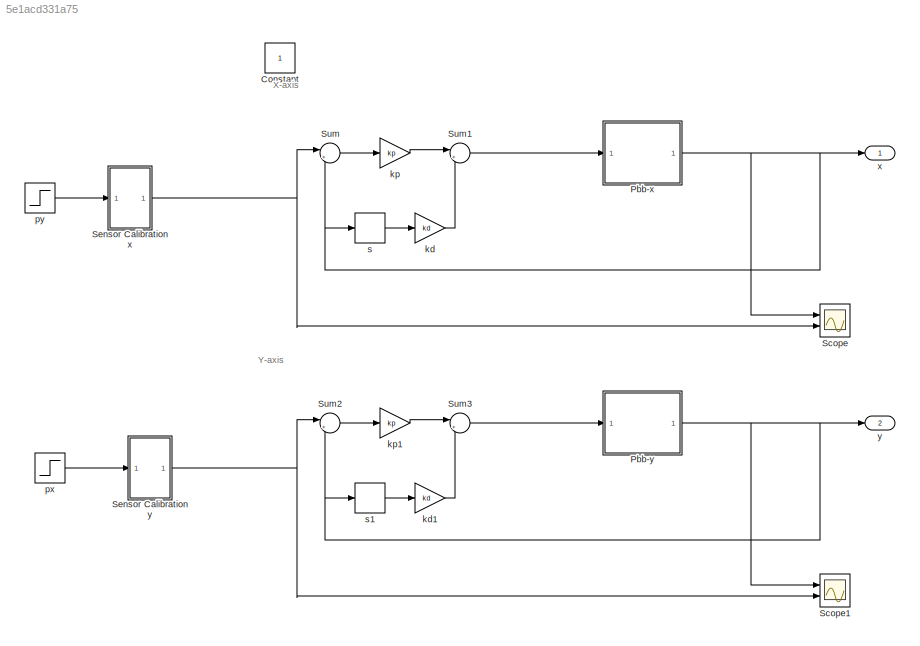
MODEL slx_5e1acd331a75
KIND model
CONFIG AbsTol = auto
CONFIG EnableMultiTasking = off
CONFIG FixedStep = auto
CONFIG MaxStep = auto
CONFIG MinStep = auto
CONFIG RelTol = 1e-3
CONFIG SampleTimeConstraint = Unconstrained
CONFIG Solver = VariableStepAuto
CONFIG SolverName = VariableStepAuto
CONFIG StartTime = 0.0
CONFIG StopTime = 10.0
BLOCK [Constant] Constant
  IOType = siggen
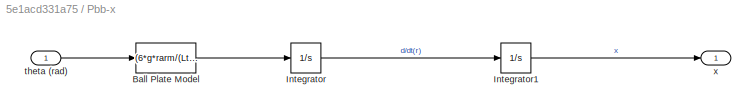
BLOCK [SubSystem] Pbb-x
  Ports = [1, 1]
  RequestExecContextInheritance = off
BLOCK [Fcn] Pbb-x/Ball Plate Model
  Expr = (6*g*rarm/(Lt*5))*u(1)
BLOCK [Integrator] Pbb-x/Integrator
  Ports = [1, 1]
BLOCK [Integrator] Pbb-x/Integrator1
  Ports = [1, 1]
BLOCK [Inport] Pbb-x/theta (rad)
BLOCK [Outport] Pbb-x/x
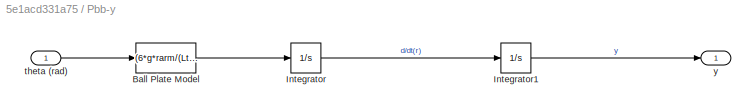
BLOCK [SubSystem] Pbb-y
  Ports = [1, 1]
  RequestExecContextInheritance = off
BLOCK [Fcn] Pbb-y/Ball Plate Model
  Expr = (6*g*rarm/(Lt*5))*u(1)
BLOCK [Integrator] Pbb-y/Integrator
  Ports = [1, 1]
BLOCK [Integrator] Pbb-y/Integrator1
  Ports = [1, 1]
BLOCK [Inport] Pbb-y/theta (rad)
BLOCK [Outport] Pbb-y/y
BLOCK [Scope] Scope
  Floating = off
  NumInputPorts = 2
  Ports = [2]
  ScopeSpecificationString = Simulink.scopes.TimeScopeBlockCfg('CurrentConfiguration', extmgr.ConfigurationSet(extmgr.Configuration('Core','General UI',true),extmgr.Configuration('Core','Source UI',true),extmgr.Configuration('Sources','WiredSimulink',true),extmgr.Configuration('Visuals','Time Domain',true,'SerializedDisplays',{struct('MinYLimReal','-1.65548','MaxYLimReal','14.89936','YLabelReal','','MinYLimMag','0.00000','Max...<+1442ch>
BLOCK [Scope] Scope1
  Floating = off
  NumInputPorts = 2
  Ports = [2]
  ScopeSpecificationString = Simulink.scopes.TimeScopeBlockCfg('CurrentConfiguration', extmgr.ConfigurationSet(extmgr.Configuration('Core','General UI',true),extmgr.Configuration('Core','Source UI',true),extmgr.Configuration('Sources','WiredSimulink',true,'DataLoggingVariableName','ScopeData1'),extmgr.Configuration('Visuals','Time Domain',true,'SerializedDisplays',{struct('MinYLimReal','-0.73577','MaxYLimReal','6.62194','YLab...<+1478ch>
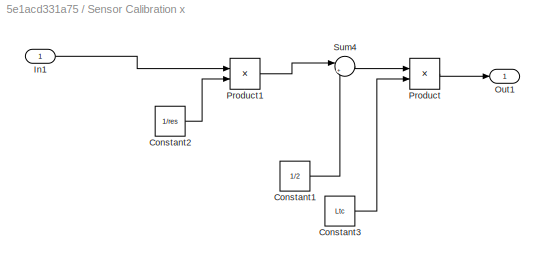
BLOCK [SubSystem] Sensor Calibration x
  Ports = [1, 1]
  RequestExecContextInheritance = off
BLOCK [Constant] Sensor Calibration x/Constant1
  Value = 1/2
BLOCK [Constant] Sensor Calibration x/Constant2
  Value = 1/res
BLOCK [Constant] Sensor Calibration x/Constant3
  Value = Ltc
BLOCK [Inport] Sensor Calibration x/In1
BLOCK [Outport] Sensor Calibration x/Out1
BLOCK [Product] Sensor Calibration x/Product
  Ports = [2, 1]
BLOCK [Product] Sensor Calibration x/Product1
  Ports = [2, 1]
BLOCK [Sum] Sensor Calibration x/Sum4
  Inputs = |+-
  Ports = [2, 1]
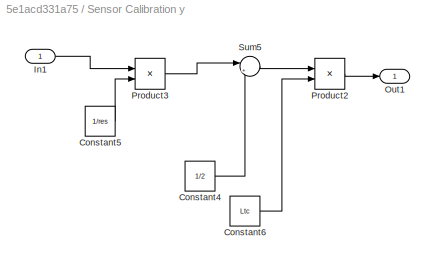
BLOCK [SubSystem] Sensor Calibration y
  Ports = [1, 1]
  RequestExecContextInheritance = off
BLOCK [Constant] Sensor Calibration y/Constant4
  Value = 1/2
BLOCK [Constant] Sensor Calibration y/Constant5
  Value = 1/res
BLOCK [Constant] Sensor Calibration y/Constant6
  Value = Ltc
BLOCK [Inport] Sensor Calibration y/In1
BLOCK [Outport] Sensor Calibration y/Out1
BLOCK [Product] Sensor Calibration y/Product2
  Ports = [2, 1]
BLOCK [Product] Sensor Calibration y/Product3
  Ports = [2, 1]
BLOCK [Sum] Sensor Calibration y/Sum5
  Inputs = |+-
  Ports = [2, 1]
BLOCK [Sum] Sum
  Inputs = |+-
  Ports = [2, 1]
BLOCK [Sum] Sum1
  Inputs = |+-
  Ports = [2, 1]
BLOCK [Sum] Sum2
  Inputs = |+-
  Ports = [2, 1]
BLOCK [Sum] Sum3
  Inputs = |+-
  Ports = [2, 1]
BLOCK [Gain] kd
  Gain = kd
BLOCK [Gain] kd1
  Gain = kd
BLOCK [Gain] kp
  Gain = kp
BLOCK [Gain] kp1
  Gain = kp
BLOCK [Step] px
  After = px
  SampleTime = 0
  Time = 0
BLOCK [Step] py
  After = py
  SampleTime = 0
  Time = 0
BLOCK [Derivative] s
BLOCK [Derivative] s1
BLOCK [Outport] x
BLOCK [Outport] y
  Port = 2
ANNOTATION (root): X-axis
ANNOTATION (root): Y-axis
LINE Pbb-x/Ball Plate Model:1 -> Pbb-x/Integrator:1
LINE Pbb-x/Integrator1:1 -> Pbb-x/x:1
LINE Pbb-x/Integrator:1 -> Pbb-x/Integrator1:1
LINE Pbb-x/theta (rad):1 -> Pbb-x/Ball Plate Model:1
NET Pbb-x:1 -> Scope:1, Sum:2, s:1, x:1
LINE Pbb-y/Ball Plate Model:1 -> Pbb-y/Integrator:1
LINE Pbb-y/Integrator1:1 -> Pbb-y/y:1
LINE Pbb-y/Integrator:1 -> Pbb-y/Integrator1:1
LINE Pbb-y/theta (rad):1 -> Pbb-y/Ball Plate Model:1
NET Pbb-y:1 -> Scope1:1, Sum2:2, s1:1, y:1
LINE Sensor Calibration x/Constant1:1 -> Sensor Calibration x/Sum4:2
LINE Sensor Calibration x/Constant2:1 -> Sensor Calibration x/Product1:2
LINE Sensor Calibration x/Constant3:1 -> Sensor Calibration x/Product:2
LINE Sensor Calibration x/In1:1 -> Sensor Calibration x/Product1:1
LINE Sensor Calibration x/Product1:1 -> Sensor Calibration x/Sum4:1
LINE Sensor Calibration x/Product:1 -> Sensor Calibration x/Out1:1
LINE Sensor Calibration x/Sum4:1 -> Sensor Calibration x/Product:1
NET Sensor Calibration x:1 -> Scope:2, Sum:1
LINE Sensor Calibration y/Constant4:1 -> Sensor Calibration y/Sum5:2
LINE Sensor Calibration y/Constant5:1 -> Sensor Calibration y/Product3:2
LINE Sensor Calibration y/Constant6:1 -> Sensor Calibration y/Product2:2
LINE Sensor Calibration y/In1:1 -> Sensor Calibration y/Product3:1
LINE Sensor Calibration y/Product2:1 -> Sensor Calibration y/Out1:1
LINE Sensor Calibration y/Product3:1 -> Sensor Calibration y/Sum5:1
LINE Sensor Calibration y/Sum5:1 -> Sensor Calibration y/Product2:1
NET Sensor Calibration y:1 -> Scope1:2, Sum2:1
LINE Sum1:1 -> Pbb-x:1
LINE Sum2:1 -> kp1:1
LINE Sum3:1 -> Pbb-y:1
LINE Sum:1 -> kp:1
LINE kd1:1 -> Sum3:2
LINE kd:1 -> Sum1:2
LINE kp1:1 -> Sum3:1
LINE kp:1 -> Sum1:1
LINE px:1 -> Sensor Calibration y:1
LINE py:1 -> Sensor Calibration x:1
LINE s1:1 -> kd1:1
LINE s:1 -> kd:1
note: NET lines group one-source signal fan-out (src -> all destinations, sorted); 1:1 wires keep LINE
